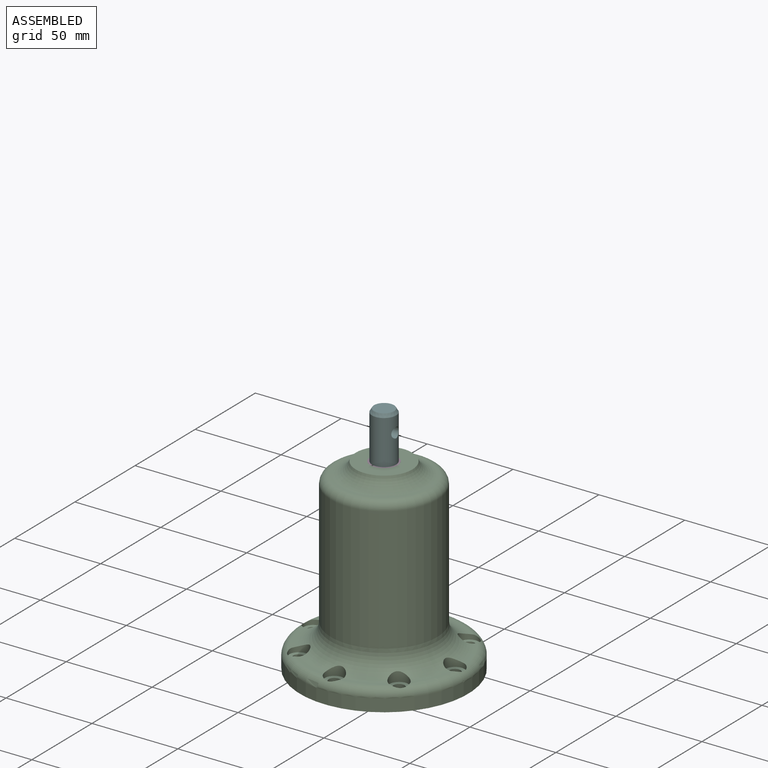
[diagram: assembled view]
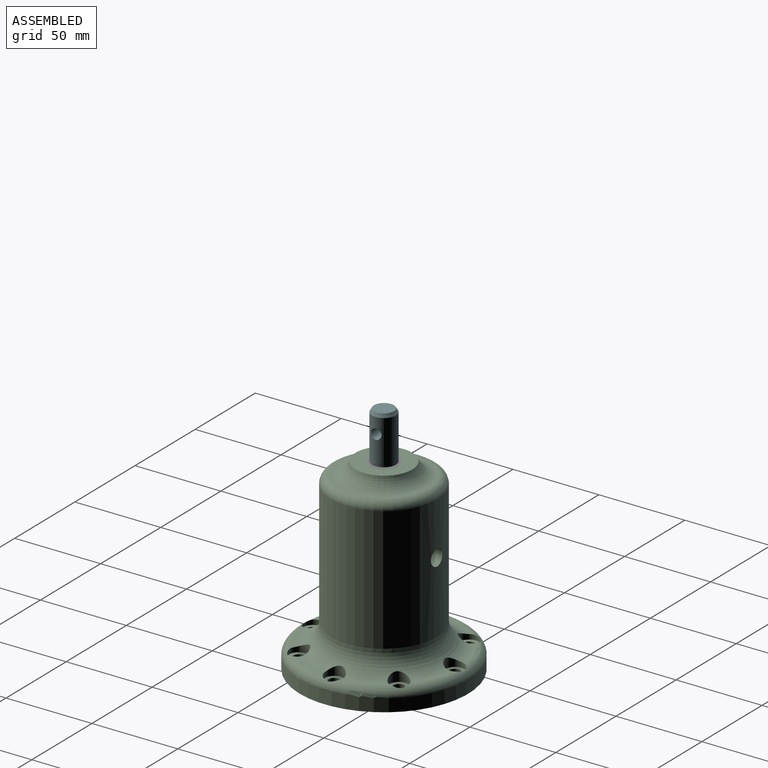
[diagram: assembled view, second angle]
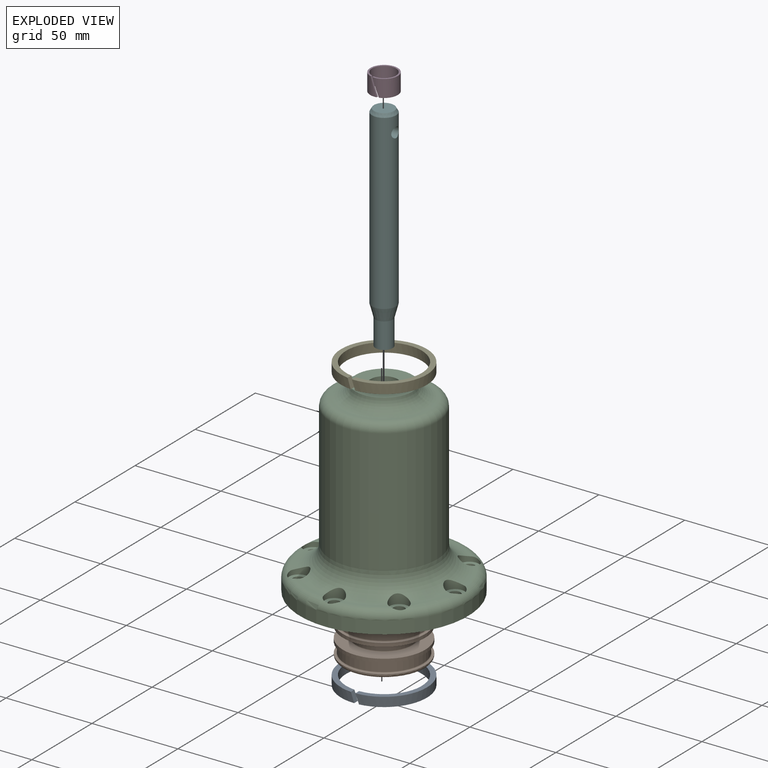
[diagram: exploded view]
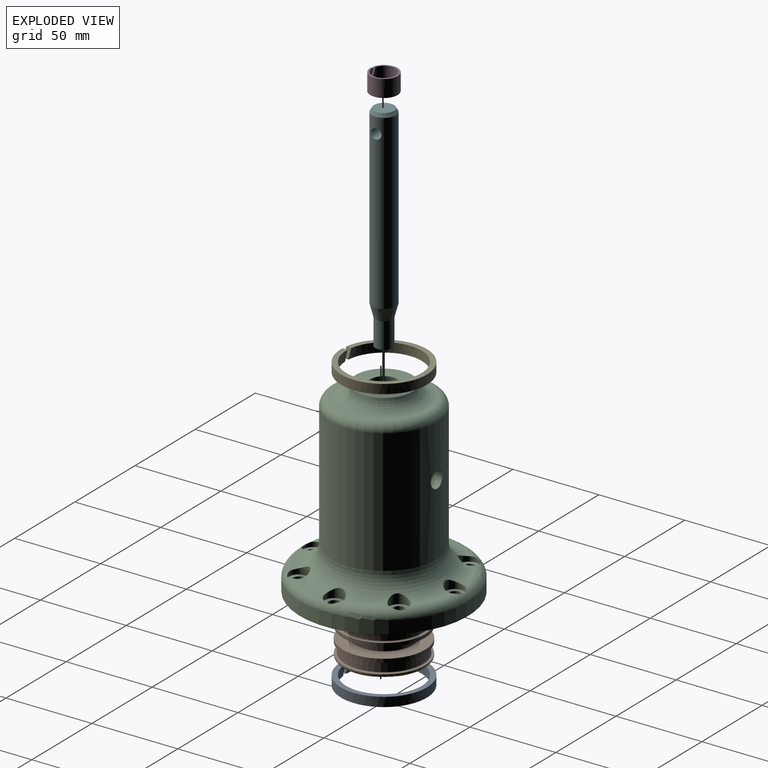
[diagram: exploded view, second angle]
ASSEMBLY  parts=6 mates=7
PART A: 6 faces, bbox 50x50x5.4 mm
  f0: cylinder r=25mm len=50mm, axis (0,0,1), area 833.8mm2, adj f2,f3,f4,f5
  f1: cylinder r=22mm len=44mm, axis (0,0,1), area 732.1mm2, adj f2,f3,f4,f5
  f2: plane 5.41x3.13mm, normal (0.94,0,0.34), area 17.3mm2, adj f0,f1,f4,f5
  f3: plane 5.41x3.13mm, normal (-0.94,0,-0.34), area 17.3mm2, adj f0,f1,f4,f5
  f4: plane 50x50mm, normal (0,0,-1), area 435mm2, adj f0,f1,f2,f3
  f5: plane 50x50mm, normal (0,0,1), area 435mm2, adj f0,f1,f2,f3
PART B: 29 faces, bbox 52x52x26.6 mm
  f0: cylinder r=24mm len=48mm, axis (0,0,-1), area 75.4mm2, adj f16,f23
  f1: plane 45x45mm, normal (0,0,1), area 752.7mm2, adj f23,f24
  f2: cone r=15.46mm half-angle=30deg, axis (0,0,1), area 448.3mm2, adj f24,f25
  f3: plane 22.27x22.27mm, normal (0,0,1), area 302.9mm2, adj f25,f28
  f4: plane 45x45mm, normal (0,0,-1), area 1590.4mm2, adj f26
  f5: cylinder r=24mm len=48mm, axis (0,0,-1), area 75.4mm2, adj f6,f26
  f6: plane 48x48mm, normal (0,0,1), area 147.7mm2, adj f5,f17
  f7: cylinder r=22.5mm len=45mm, axis (0,0,-1), area 728.1mm2, adj f17,f18
  f8: plane 48x48mm, normal (0,0,-1), area 147.7mm2, adj f9,f18
  f9: cylinder r=24mm len=48mm, axis (0,0,-1), area 301.6mm2, adj f8,f10
  f10: plane 48x48mm, normal (0,0,1), area 928.1mm2, adj f9,f19
  f11: cylinder r=16.25mm len=32.5mm, axis (0,0,-1), area 541.1mm2, adj f19,f20
  f12: plane 48x48mm, normal (0,0,-1), area 928.1mm2, adj f13,f20
  f13: cylinder r=24mm len=48mm, axis (0,0,-1), area 301.6mm2, adj f12,f14
  f14: plane 48x48mm, normal (0,0,1), area 147.7mm2, adj f13,f21
  f15: cylinder r=22.5mm len=45mm, axis (0,0,-1), area 728.1mm2, adj f21,f22
  f16: plane 48x48mm, normal (0,0,-1), area 147.7mm2, adj f0,f22
  f17: torus R=23mm, axis (0,0,-1), area 111.9mm2, adj f6,f7
  f18: torus R=23mm, axis (0,0,1), area 111.9mm2, adj f7,f8
  f19: torus R=16.75mm, axis (0,0,-1), area 81.1mm2, adj f10,f11
  f20: torus R=16.75mm, axis (0,0,1), area 81.1mm2, adj f11,f12
  f21: torus R=23mm, axis (0,0,-1), area 111.9mm2, adj f14,f15
  f22: torus R=23mm, axis (0,0,1), area 111.9mm2, adj f15,f16
  f23: torus R=22.5mm, axis (0,0,-1), area 347.2mm2, adj f0,f1
  f24: torus R=16.33mm, axis (0,0,-1), area 154.1mm2, adj f1,f2
  f25: torus R=11.13mm, axis (0,0,1), area 117mm2, adj f2,f3
  f26: torus R=22.5mm, axis (0,0,1), area 347.2mm2, adj f4,f5
  f27: cone r=0mm half-angle=59deg, axis (0,0,1), area 101mm2, adj f28
  f28: cylinder r=5.25mm len=16.5mm, axis (0,0,1), area 544.3mm2, adj f3,f27
PART C: 56 faces, bbox 114.1x114.1x112.4 mm
  f0: plane 22.25x9.31mm, normal (0,0,1), area 5.3mm2, adj f25,f26,f46,f49
  f1: plane 22.25x9.31mm, normal (0,0,1), area 5.3mm2, adj f25,f26,f43,f46
  f2: plane 22.25x9.31mm, normal (0,0,1), area 5.3mm2, adj f25,f26,f40,f43
  f3: plane 22.25x9.31mm, normal (0,0,1), area 5.3mm2, adj f25,f26,f28,f49
  f4: plane 22.25x9.31mm, normal (0,0,1), area 5.3mm2, adj f25,f26,f34,f37
  f5: plane 22.25x9.31mm, normal (0,0,1), area 5.3mm2, adj f25,f26,f31,f34
  f6: plane 22.25x9.31mm, normal (0,0,1), area 5.3mm2, adj f25,f26,f28,f31
  f7: cylinder r=37mm len=74mm, axis (0,0,-1), area 1476.2mm2, adj f8,f24
  f8: plane 74x74mm, normal (0,0,-1), area 1658.8mm2, adj f7,f9
  f9: cylinder r=29mm len=58mm, axis (0,0,-1), area 364.4mm2, adj f8,f10
  f10: plane 58x58mm, normal (0,0,-1), area 235.1mm2, adj f9,f52
  f11: cylinder r=25mm len=76mm, axis (0,0,-1), area 11867mm2, adj f51,f52,f55
  f12: plane 46x46mm, normal (0,0,-1), area 1171mm2, adj f13,f55
  f13: cylinder r=12.5mm len=25mm, axis (0,0,-1), area 549.8mm2, adj f12,f14
  f14: plane 25x25mm, normal (0,0,-1), area 289.8mm2, adj f13,f15
  f15: cylinder r=8mm len=16mm, axis (0,0,-1), area 50.3mm2, adj f14,f16
  f16: plane 18x18mm, normal (0,0,1), area 53.4mm2, adj f15,f17
  f17: cylinder r=9mm len=18mm, axis (0,0,-1), area 452.4mm2, adj f16,f18
  f18: plane 18x18mm, normal (0,0,-1), area 53.4mm2, adj f17,f19
  f19: cylinder r=8mm len=16mm, axis (0,0,-1), area 50.3mm2, adj f18,f20
  f20: plane 33x33mm, normal (0,0,1), area 654.2mm2, adj f19,f53
  f21: cylinder r=31mm len=72.3mm, axis (0,0,-1), area 14010.9mm2, adj f25,f51,f54
  f22: plane 22.25x9.31mm, normal (0,0,1), area 5.3mm2, adj f25,f26,f37,f40
  f23: cylinder r=49mm len=98mm, axis (0,0,-1), area 2238.3mm2, adj f24,f26
  f24: plane 98x98mm, normal (0,0,-1), area 2976.7mm2, adj f7,f23,f27,f30,f33,f36,f39,f42
  f25: torus R=43.7mm, axis (0,0,-1), area 3838.1mm2, adj f0,f1,f2,f3,f4,f5,f6,f21
  f26: torus R=43.92mm, axis (0,0,-1), area 2186.4mm2, adj f0,f1,f2,f3,f4,f5,f6,f22
  f27: cylinder r=3.25mm len=9.53mm, axis (0,0,-1), area 194.5mm2, adj f24,f29
  f28: cylinder r=5.56mm len=11.13mm, axis (0,0,-1), area 120.5mm2, adj f3,f6,f25,f26,f29
  f29: plane 11.13x11.13mm, normal (0,0,1), area 64mm2, adj f27,f28
  f30: cylinder r=3.25mm len=9.53mm, axis (0,0,-1), area 194.5mm2, adj f24,f32
  f31: cylinder r=5.56mm len=11.13mm, axis (0,0,-1), area 120.5mm2, adj f5,f6,f25,f26,f32
  f32: plane 11.13x11.13mm, normal (0,0,1), area 64mm2, adj f30,f31
  f33: cylinder r=3.25mm len=9.53mm, axis (0,0,-1), area 194.5mm2, adj f24,f35
  f34: cylinder r=5.56mm len=11.13mm, axis (0,0,-1), area 120.5mm2, adj f4,f5,f25,f26,f35
  f35: plane 11.13x11.13mm, normal (0,0,1), area 64mm2, adj f33,f34
  f36: cylinder r=3.25mm len=9.53mm, axis (0,0,-1), area 194.5mm2, adj f24,f38
  f37: cylinder r=5.56mm len=11.13mm, axis (0,0,-1), area 120.5mm2, adj f4,f22,f25,f26,f38
  f38: plane 11.13x11.13mm, normal (0,0,1), area 64mm2, adj f36,f37
  f39: cylinder r=3.25mm len=9.53mm, axis (0,0,-1), area 194.5mm2, adj f24,f41
  f40: cylinder r=5.56mm len=11.13mm, axis (0,0,-1), area 120.5mm2, adj f2,f22,f25,f26,f41
  f41: plane 11.13x11.13mm, normal (0,0,1), area 64mm2, adj f39,f40
  f42: cylinder r=3.25mm len=9.53mm, axis (0,0,-1), area 194.5mm2, adj f24,f44
  f43: cylinder r=5.56mm len=11.13mm, axis (0,0,-1), area 120.5mm2, adj f1,f2,f25,f26,f44
  f44: plane 11.13x11.13mm, normal (0,0,1), area 64mm2, adj f42,f43
  f45: cylinder r=3.25mm len=9.53mm, axis (0,0,-1), area 194.5mm2, adj f24,f47
  f46: cylinder r=5.56mm len=11.13mm, axis (0,0,-1), area 120.5mm2, adj f0,f1,f25,f26,f47
  f47: plane 11.13x11.13mm, normal (0,0,1), area 64mm2, adj f45,f46
  f48: cylinder r=3.25mm len=9.53mm, axis (0,0,-1), area 194.5mm2, adj f24,f50
  f49: cylinder r=5.56mm len=11.13mm, axis (0,0,-1), area 120.5mm2, adj f0,f3,f25,f26,f50
  f50: plane 11.13x11.13mm, normal (0,0,1), area 64mm2, adj f48,f49
  f51: cylinder r=4.76mm len=9.53mm, axis (0,-1,0), area 180.9mm2, adj f11,f21
  f52: cone r=25mm half-angle=15deg, axis (0,0,-1), area 1713.4mm2, adj f10,f11
  f53: torus R=26.04mm, axis (0,0,1), area 1627.4mm2, adj f20,f54
  f54: torus R=26mm, axis (0,0,1), area 1438mm2, adj f21,f53
  f55: torus R=23mm, axis (0,0,1), area 479.1mm2, adj f11,f12
PART D: 6 faces, bbox 16x16x10 mm
  f0: cylinder r=8mm len=16mm, axis (0,0,1), area 491.9mm2, adj f2,f3,f4,f5
  f1: cylinder r=7mm len=14mm, axis (0,0,1), area 429mm2, adj f2,f3,f4,f5
  f2: plane 10x3.64mm, normal (0.94,0,0.34), area 10.8mm2, adj f0,f1,f4,f5
  f3: plane 10x3.64mm, normal (-0.94,0,-0.34), area 10.8mm2, adj f0,f1,f4,f5
  f4: plane 16x16mm, normal (0,0,1), area 46mm2, adj f0,f1,f2,f3
  f5: plane 16x16mm, normal (0,0,-1), area 46mm2, adj f0,f1,f2,f3
PART E: same geometry as A
PART F: 7 faces, bbox 14x14x125 mm
  f0: cylinder r=7mm len=100.54mm, axis (0,0,-1), area 4363.8mm2, adj f2,f3,f6
  f1: plane 11.69x11.69mm, normal (0,0,1), area 107.3mm2, adj f6
  f2: cylinder r=3mm len=14mm, axis (1,0,0), area 251.3mm2, adj f0
  f3: cone r=7mm half-angle=15deg, axis (0,0,1), area 291.3mm2, adj f0,f4
  f4: cylinder r=5mm len=15mm, axis (0,0,1), area 471.2mm2, adj f3,f5
  f5: plane 10x10mm, normal (0,0,-1), area 78.5mm2, adj f4
  f6: cone r=5.85mm half-angle=30deg, axis (0,0,-1), area 93.2mm2, adj f0,f1
PLACE A rot(axis=(0,0,1),1.1deg) t=(0,0,7.45)mm
PLACE B t=(0,0,15.3)mm
PLACE C at identity fixed
PLACE D t=(0,0,100)mm
PLACE E rot(axis=(0,0,-1),3.7deg) t=(0,0,23.9)mm
PLACE F rot(axis=(0,0,-1),180deg) t=(0,0,70.35)mm
MATE planar B.f0 <-> E.f5  axis (0,0,-1) through (0,0,26.6)mm
MATE cylindrical E.f0 <-> B.f0  axis (0,0,1) through (0,0,21.2)mm
MATE cylindrical C.f7 <-> D.f0  axis (0,0,-1) through (0,0,100)mm
MATE slider B.f0 <-> C.f7  axis (0,0,1) through (0,0,4)mm
MATE planar A.f5 <-> B.f0  axis (0,0,1) through (0.01,0.43,10.15)mm
MATE cylindrical A.f0 <-> B.f0  axis (0,0,1) through (0,0,4.75)mm
MATE fastened B.f0 <-> F.f3  axis (0,0,1) through (0,0,27.85)mm
